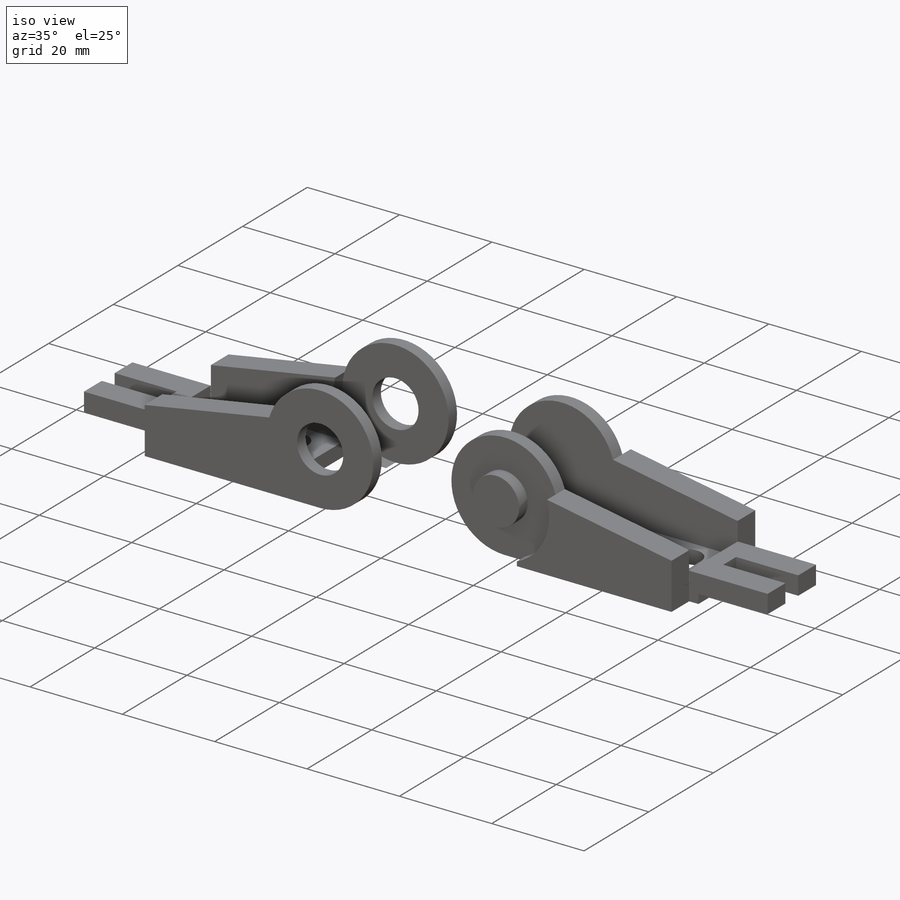
[diagram: iso view]
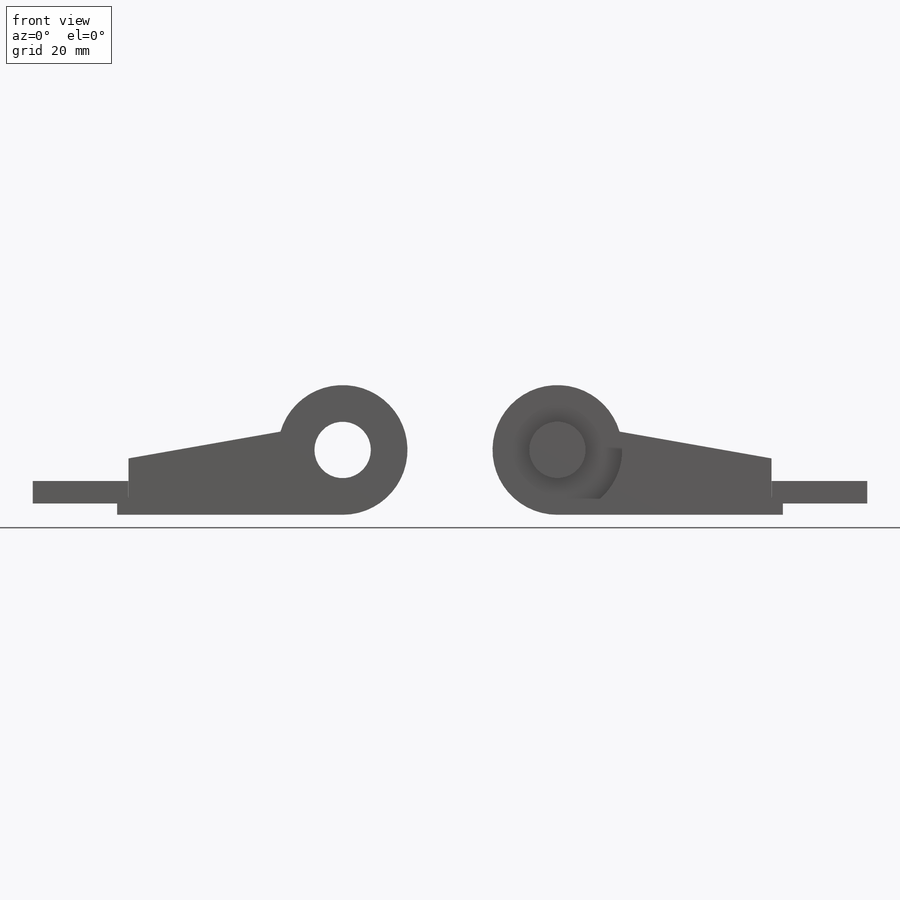
[diagram: front view]
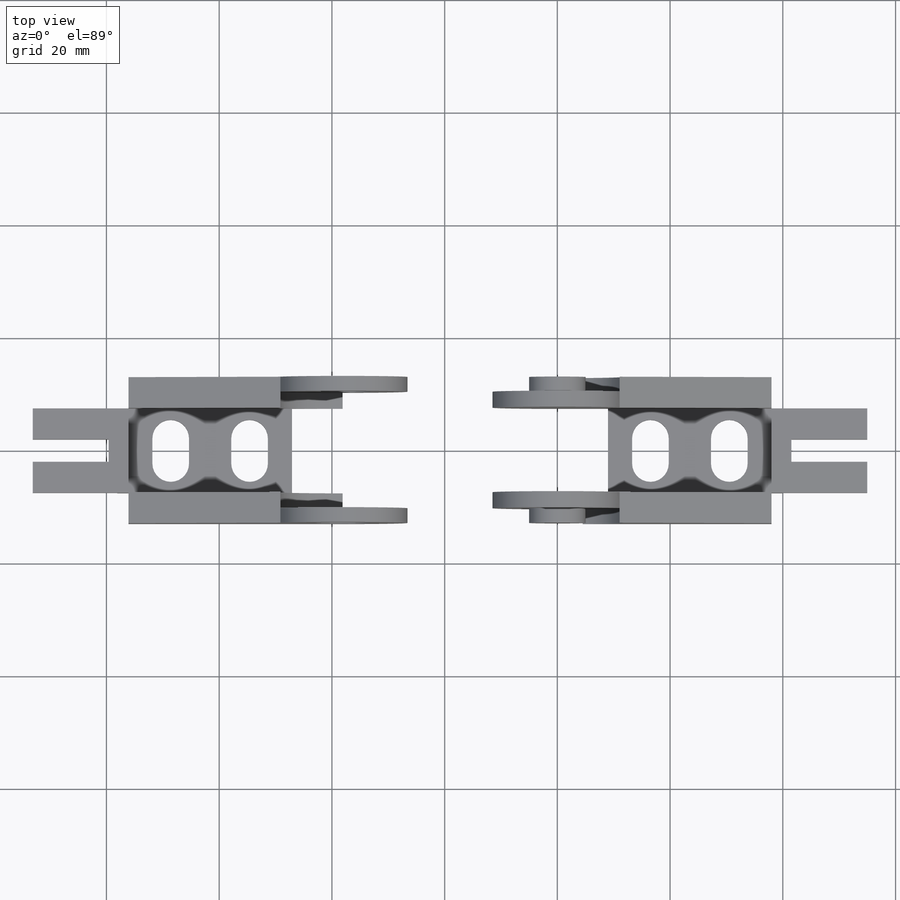
[diagram: top view]
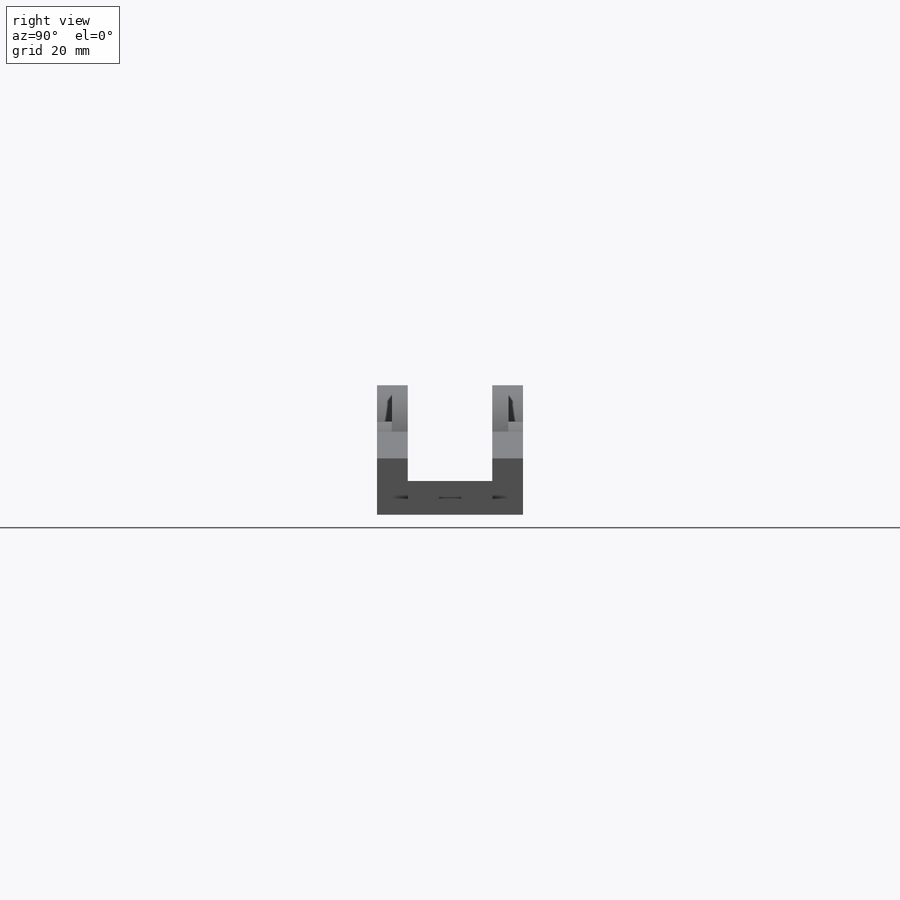
[diagram: right view]
SOLIDWORKS PART (.sldprt)
format: sldprt  version: not decoded by parser v0  size: 349,184 bytes
history: native  units: mm
features: sketch x11, cut_extrude x6, extrude x4, mirror x2, material x1, plane x1 (+14 scaffold rows collapsed)
feature tree (39):
  scaffold x14  (default folders/planes/origin — collapsed)
  material  "Material <not specified>"
  sketch  "Sketch1"  dims[c1.D1=10.0076mm c1.D2=23.0124mm c1.D3=~62.99105mm c2.D3=10.0deg c2.D4=10.0076mm c2.D5=37.9984mm c2.D6=0.9144mm c2.D7=2.0066mm c2.D8=3.9878mm c2.D9=54.991mm]
  sketch  "Sketch2"
  extrude  "Extrude1"  Depth=25.908mm
  sketch  "Sketch3"
  cut_extrude  "Cut-Extrude1"  Depth=2.6162mm
  mirror  "Mirror1"
  sketch  "Sketch4"  dims[D2=29.0068mm D3=2.9972mm D1=0.0mm]
  cut_extrude  "Cut-Extrude2"  Depth=14.986mm
  sketch  "Sketch5"  dims[D1=0.0254mm]
  extrude  "Extrude2"  [1 undecoded]
  sketch  "Sketch7"  dims[D1=3.5052mm D2=3.9878mm]
  cut_extrude  "Cut-Extrude3"  [1 undecoded]
  sketch  "Sketch8"  dims[D1=3.2512mm D2=4.4958mm D3=13.9954mm]
  cut_extrude  "Cut-Extrude4"  [1 undecoded]
  plane  "Plane1"  Offset=19.05mm
  mirror  "Mirror3"
  sketch  "Sketch9"  dims[D1=0.0mm]
  sketch  "Sketch10"  dims[D1=0.0mm]
  extrude  "Extrude3"  [1 undecoded]
  sketch  "Sketch11"  dims[D1=0.0mm]
  extrude  "Extrude4"  [1 undecoded]
  cut_extrude  "Cut-Extrude5"  [1 undecoded]
  sketch  "Sketch12"  dims[D1=17.018mm]
  cut_extrude  "Cut-Extrude6"  [1 undecoded]
decode coverage: 12 of 23 modeling features carry decoded parameters
note: ~ marks probable driven/reference dimensions
note: 7 parameter values undecoded
summary: no parameter record found for 7 features
note: suppression state not decoded; provenance and decode notes live in map.json
